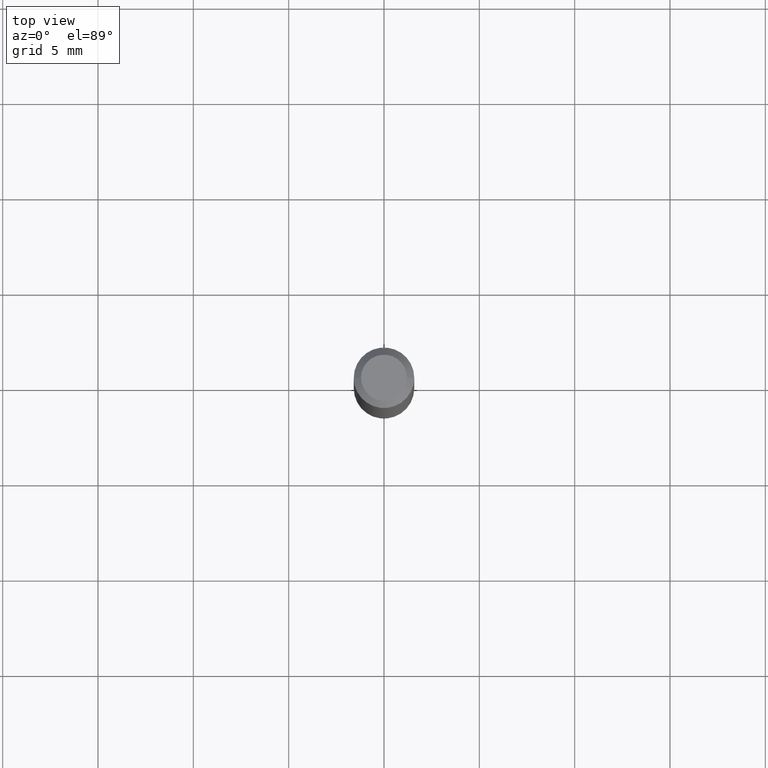
[diagram: clean part render]
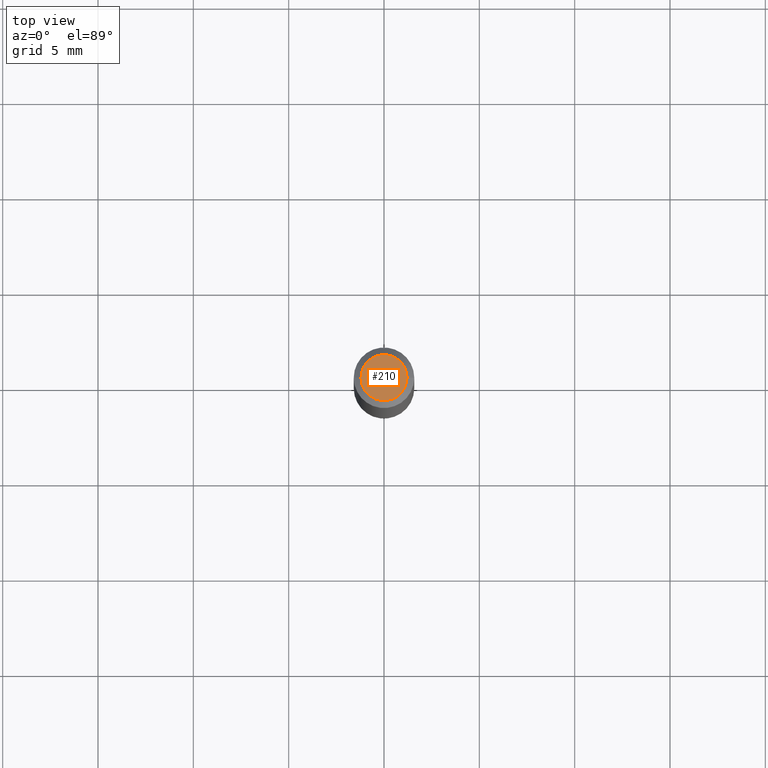
[diagram: same view with one face highlighted and labeled with its STEP entity id]
A machine part, top view. The second image highlights one B-rep face of the part: STEP entity #210.
In plain terms, the highlighted planar face has unit normal (0, -0, -1).
Its self-contained STEP definition (entity closure, byte-faithful):
#14 = DIRECTION ( 'NONE',  ( -2.445468806185136597E-29, 3.491481338843145583E-15, 1.000000000000000000 ) ) ;
#18 = CARTESIAN_POINT ( 'NONE',  ( 1.873992581615772204E-44, -2.675564747051046294E-30, -7.663122002930588880E-16 ) ) ;
#22 = CARTESIAN_POINT ( 'NONE',  ( 1.873992581615772204E-44, -2.675564747051046294E-30, -7.663122002930588880E-16 ) ) ;
#72 = CIRCLE ( 'NONE', #268, 0.04749999999999999362 ) ;
#83 = DIRECTION ( 'NONE',  ( 2.438088387897960049E-29, -3.491481338843145188E-15, -1.000000000000000000 ) ) ;
#115 = VERTEX_POINT ( 'NONE', #324 ) ;
#152 = EDGE_LOOP ( 'NONE', ( #167, #460 ) ) ;
#158 = VERTEX_POINT ( 'NONE', #365 ) ;
#166 = DIRECTION ( 'NONE',  ( 1.000000000000000000, -6.982962677686267499E-15, 4.852736867747366768E-29 ) ) ;
#167 = ORIENTED_EDGE ( 'NONE', *, *, #309, .T. ) ;
#184 = EDGE_CURVE ( 'NONE', #158, #115, #72, .T. ) ;
#197 = DIRECTION ( 'NONE',  ( 1.000000000000000000, -6.982962677686267499E-15, 4.852736867747366768E-29 ) ) ;
#210 = ADVANCED_FACE ( 'NONE', ( #263 ), #404, .F. ) ;
#211 = AXIS2_PLACEMENT_3D ( 'NONE', #22, #344, #166 ) ;
#263 = FACE_OUTER_BOUND ( 'NONE', #152, .T. ) ;
#268 = AXIS2_PLACEMENT_3D ( 'NONE', #18, #14, #197 ) ;
#309 = EDGE_CURVE ( 'NONE', #115, #158, #350, .T. ) ;
#324 = CARTESIAN_POINT ( 'NONE',  ( -0.04749999999999999362, 3.578768372314197194E-16, -7.663122002930613532E-16 ) ) ;
#344 = DIRECTION ( 'NONE',  ( -2.445468806185136597E-29, 3.491481338843145583E-15, 1.000000000000000000 ) ) ;
#350 = CIRCLE ( 'NONE', #211, 0.04749999999999999362 ) ;
#365 = CARTESIAN_POINT ( 'NONE',  ( 0.04749999999999999362, -4.035134999187591935E-16, -7.663122002930563242E-16 ) ) ;
#404 = PLANE ( 'NONE',  #431 ) ;
#412 = DIRECTION ( 'NONE',  ( -1.000000000000000000, 6.982962677686265922E-15, -4.876176775795935793E-29 ) ) ;
#431 = AXIS2_PLACEMENT_3D ( 'NONE', #444, #83, #412 ) ;
#444 = CARTESIAN_POINT ( 'NONE',  ( 3.316907271900976096E-16, 0.04749999999999999362, -5.490014637415788897E-16 ) ) ;
#460 = ORIENTED_EDGE ( 'NONE', *, *, #184, .T. ) ;